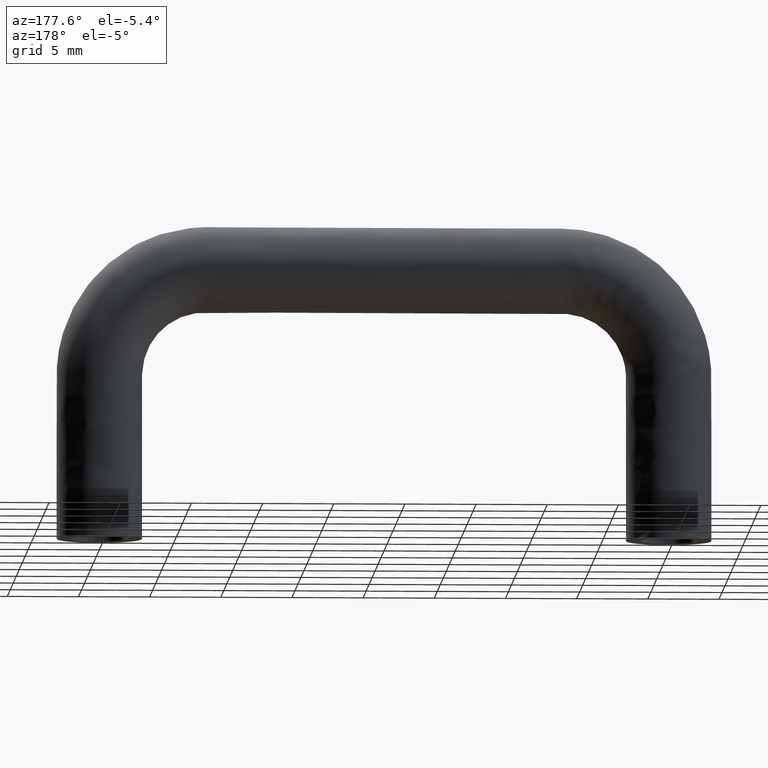
[diagram: clean part render]
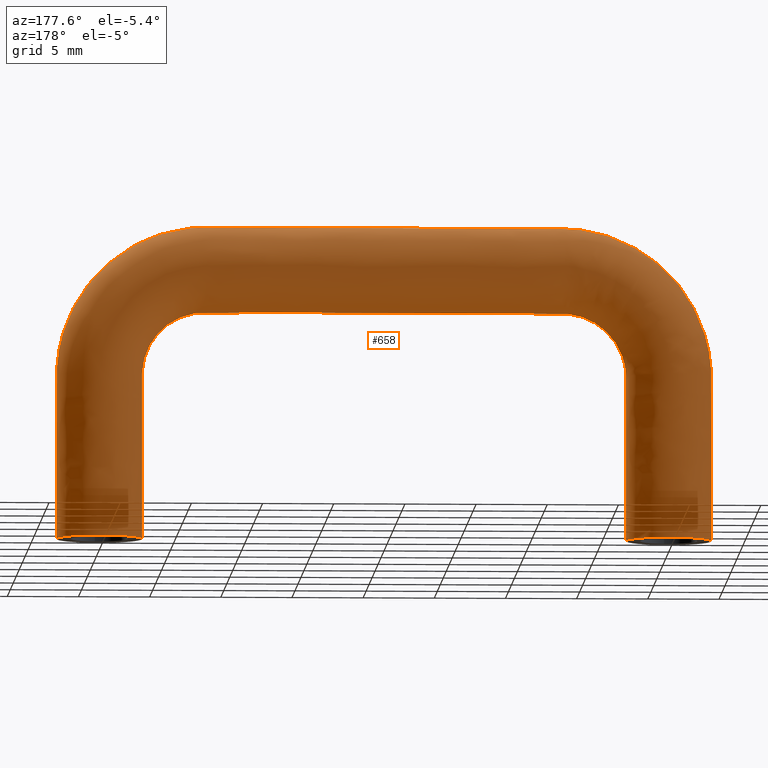
[diagram: same view with one face highlighted and labeled with its STEP entity id]
A machine part, auxiliary view. The second image highlights one B-rep face of the part: STEP entity #658.
In plain terms, the highlighted face is a freeform B-spline surface patch.
Its self-contained STEP definition (entity closure, byte-faithful):
#440=CARTESIAN_POINT('',(-3.000000000000002,-0.043189099899031,-0.381861436358178));
#441=CARTESIAN_POINT('',(-2.999999999999999,-0.021151251618007,-0.381861436358177));
#442=CARTESIAN_POINT('',(-3.000000000000001,3.000000000000001,-0.381861436358177));
#443=CARTESIAN_POINT('',(1.836704E-016,3.0,-0.381861436358178));
#444=CARTESIAN_POINT('',(3.000000000000001,3.000000000000001,-0.381861436358177));
#445=CARTESIAN_POINT('',(3.000000000000000,-0.021151252378914,-0.381861436358178));
#446=CARTESIAN_POINT('',(2.999999999999999,-0.042179325162122,-0.381861436358177));
#447=CARTESIAN_POINT('',(-3.000000000000003,-0.043189099899031,3.584546247387517));
#448=CARTESIAN_POINT('',(-2.999999999999999,-0.021151251618007,3.584546247387514));
#449=CARTESIAN_POINT('',(-3.000000000000001,3.000000000000001,3.584546247387515));
#450=CARTESIAN_POINT('',(1.930558E-016,3.0,3.584546247387515));
#451=CARTESIAN_POINT('',(3.000000000000001,3.000000000000001,3.584546247387516));
#452=CARTESIAN_POINT('',(3.000000000000000,-0.021151252378914,3.584546247387516));
#453=CARTESIAN_POINT('',(2.999999999999999,-0.042179325162122,3.584546247387514));
#454=CARTESIAN_POINT('',(-3.000000000000003,-0.043189099899031,7.542273123693765));
#455=CARTESIAN_POINT('',(-2.999999999999999,-0.021151251618007,7.542273123693756));
#456=CARTESIAN_POINT('',(-3.000000000000003,3.000000000000001,7.542273123693760));
#457=CARTESIAN_POINT('',(-1.052025E-016,3.0,7.542273123693759));
#458=CARTESIAN_POINT('',(3.000000000000001,3.000000000000001,7.542273123693745));
#459=CARTESIAN_POINT('',(3.000000000000000,-0.021151252378914,7.542273123693750));
#460=CARTESIAN_POINT('',(2.999999999999999,-0.042179325162122,7.542273123693747));
#461=CARTESIAN_POINT('',(-3.000000000000003,-0.043189099899031,11.500000000000005));
#462=CARTESIAN_POINT('',(-2.999999999999999,-0.021151251618007,11.500000000000000));
#463=CARTESIAN_POINT('',(-2.999999999999987,3.000000000000001,11.499999999999995));
#464=CARTESIAN_POINT('',(9.086292E-015,3.0,11.500000000000000));
#465=CARTESIAN_POINT('',(3.000000000000008,3.000000000000001,11.499999999999982));
#466=CARTESIAN_POINT('',(3.000000000000000,-0.021151252378914,11.499999999999998));
#467=CARTESIAN_POINT('',(2.999999999999999,-0.042179325162122,11.499999999999996));
#468=CARTESIAN_POINT('',(-3.000000000000003,-0.043189099899031,14.283620580298569));
#469=CARTESIAN_POINT('',(-3.0,-0.021151251618007,14.283620580298557));
#470=CARTESIAN_POINT('',(-2.999999999999980,3.000000000000001,14.283620580298548));
#471=CARTESIAN_POINT('',(1.743353E-014,3.0,13.489123673796581));
#472=CARTESIAN_POINT('',(3.000000000000014,3.000000000000001,12.694626767294574));
#473=CARTESIAN_POINT('',(3.000000000000000,-0.021151252378914,12.694626767294581));
#474=CARTESIAN_POINT('',(2.999999999999999,-0.042179325162122,12.694626767294571));
#475=CARTESIAN_POINT('',(-1.892938191038292,-0.043189099899031,16.956304213879204));
#476=CARTESIAN_POINT('',(-1.892938191038290,-0.021151251618007,16.956304213879193));
#477=CARTESIAN_POINT('',(-1.892938191038287,3.000000000000001,16.956304213879182));
#478=CARTESIAN_POINT('',(0.790176302740649,3.0,15.396778020538850));
#479=CARTESIAN_POINT('',(3.473290796519585,3.000000000000001,13.837251827198479));
#480=CARTESIAN_POINT('',(3.473290796519586,-0.021151252378914,13.837251827198505));
#481=CARTESIAN_POINT('',(3.473290796519583,-0.042179325162122,13.837251827198486));
#482=CARTESIAN_POINT('',(2.043695786120817,-0.043189099899031,20.892938191038308));
#483=CARTESIAN_POINT('',(2.043695786120815,-0.021151251618007,20.892938191038294));
#484=CARTESIAN_POINT('',(2.043695786120813,3.000000000000001,20.892938191038269));
#485=CARTESIAN_POINT('',(3.603221979461160,3.0,18.209823697259349));
#486=CARTESIAN_POINT('',(5.162748172801506,3.000000000000001,15.526709203480419));
#487=CARTESIAN_POINT('',(5.162748172801511,-0.021151252378914,15.526709203480406));
#488=CARTESIAN_POINT('',(5.162748172801508,-0.042179325162122,15.526709203480388));
#489=CARTESIAN_POINT('',(4.716379419701431,-0.043189099899031,22.000000000000014));
#490=CARTESIAN_POINT('',(4.716379419701428,-0.021151251618007,21.999999999999993));
#491=CARTESIAN_POINT('',(4.716379419701426,3.000000000000001,21.999999999999993));
#492=CARTESIAN_POINT('',(5.510876326203430,3.0,19.0));
#493=CARTESIAN_POINT('',(6.305373232705416,3.000000000000001,15.999999999999959));
#494=CARTESIAN_POINT('',(6.305373232705422,-0.021151252378914,16.000000000000007));
#495=CARTESIAN_POINT('',(6.305373232705418,-0.042179325162122,15.999999999999989));
#496=CARTESIAN_POINT('',(7.500000000000005,-0.043189099899031,22.000000000000014));
#497=CARTESIAN_POINT('',(7.499999999999997,-0.021151251618007,21.999999999999993));
#498=CARTESIAN_POINT('',(7.499999999999999,3.000000000000001,21.999999999999993));
#499=CARTESIAN_POINT('',(7.500000000000000,3.0,19.0));
#500=CARTESIAN_POINT('',(7.499999999999999,3.000000000000001,15.999999999999959));
#501=CARTESIAN_POINT('',(7.500000000000002,-0.021151252378914,16.000000000000007));
#502=CARTESIAN_POINT('',(7.499999999999996,-0.042179325162122,15.999999999999989));
#503=CARTESIAN_POINT('',(15.833333333333362,-0.043189099899031,22.000000000000014));
#504=CARTESIAN_POINT('',(15.833333333333353,-0.021151251618007,21.999999999999993));
#505=CARTESIAN_POINT('',(15.833333333333318,3.000000000000001,21.999999999999993));
#506=CARTESIAN_POINT('',(15.833333333333350,3.0,19.0));
#507=CARTESIAN_POINT('',(15.833333333333318,3.000000000000001,15.999999999999959));
#508=CARTESIAN_POINT('',(15.833333333333355,-0.021151252378914,16.000000000000007));
#509=CARTESIAN_POINT('',(15.833333333333345,-0.042179325162122,15.999999999999989));
#510=CARTESIAN_POINT('',(24.166666666666668,-0.043189099899031,22.000000000000014));
#511=CARTESIAN_POINT('',(24.166666666666643,-0.021151251618007,21.999999999999993));
#512=CARTESIAN_POINT('',(24.166666666666650,3.000000000000001,21.999999999999993));
#513=CARTESIAN_POINT('',(24.166666666666650,3.0,19.0));
#514=CARTESIAN_POINT('',(24.166666666666650,3.000000000000001,15.999999999999959));
#515=CARTESIAN_POINT('',(24.166666666666664,-0.021151252378914,16.000000000000007));
#516=CARTESIAN_POINT('',(24.166666666666639,-0.042179325162122,15.999999999999989));
#517=CARTESIAN_POINT('',(32.500000000000028,-0.043189099899031,22.000000000000014));
#518=CARTESIAN_POINT('',(32.500000000000000,-0.021151251618007,21.999999999999993));
#519=CARTESIAN_POINT('',(32.499999999999986,3.000000000000001,21.999999999999993));
#520=CARTESIAN_POINT('',(32.500000000000000,3.0,19.0));
#521=CARTESIAN_POINT('',(32.499999999999986,3.000000000000001,15.999999999999959));
#522=CARTESIAN_POINT('',(32.500000000000007,-0.021151252378914,16.000000000000007));
#523=CARTESIAN_POINT('',(32.499999999999986,-0.042179325162122,15.999999999999989));
#524=CARTESIAN_POINT('',(38.263455967290561,-0.043189099899031,22.000000000000014));
#525=CARTESIAN_POINT('',(38.263455967290533,-0.021151251618007,21.999999999999993));
#526=CARTESIAN_POINT('',(38.263455967290575,3.000000000000001,21.999999999999993));
#527=CARTESIAN_POINT('',(36.642135623730951,3.0,19.0));
#528=CARTESIAN_POINT('',(35.020815280171291,3.000000000000001,15.999999999999959));
#529=CARTESIAN_POINT('',(35.020815280171306,-0.021151252378914,16.000000000000007));
#530=CARTESIAN_POINT('',(35.020815280171277,-0.042179325162122,15.999999999999989));
#531=CARTESIAN_POINT('',(43.000000000000036,-0.043189099899031,17.263455967290607));
#532=CARTESIAN_POINT('',(42.999999999999979,-0.021151251618007,17.263455967290600));
#533=CARTESIAN_POINT('',(42.999999999999908,3.000000000000001,17.263455967290572));
#534=CARTESIAN_POINT('',(40.0,3.0,15.642135623730949));
#535=CARTESIAN_POINT('',(36.999999999999964,3.000000000000001,14.020815280171290));
#536=CARTESIAN_POINT('',(37.000000000000007,-0.021151252378914,14.020815280171306));
#537=CARTESIAN_POINT('',(36.999999999999979,-0.042179325162122,14.020815280171297));
#538=CARTESIAN_POINT('',(43.000000000000028,-0.043189099899031,11.500000000000005));
#539=CARTESIAN_POINT('',(42.999999999999979,-0.021151251618007,11.500000000000000));
#540=CARTESIAN_POINT('',(42.999999999999979,3.000000000000001,11.499999999999995));
#541=CARTESIAN_POINT('',(40.0,3.0,11.500000000000000));
#542=CARTESIAN_POINT('',(36.999999999999964,3.000000000000001,11.499999999999982));
#543=CARTESIAN_POINT('',(37.000000000000007,-0.021151252378914,11.499999999999998));
#544=CARTESIAN_POINT('',(36.999999999999979,-0.042179325162122,11.499999999999996));
#545=CARTESIAN_POINT('',(43.000000000000028,-0.043189099899031,6.517807831197576));
#546=CARTESIAN_POINT('',(42.999999999999972,-0.021151251618007,6.517807831197567));
#547=CARTESIAN_POINT('',(42.999999999999993,3.0,6.517807831197559));
#548=CARTESIAN_POINT('',(40.0,3.0,6.517807831197557));
#549=CARTESIAN_POINT('',(36.999999999999979,3.0,6.517807831197543));
#550=CARTESIAN_POINT('',(37.000000000000014,-0.021151252378914,6.517807831197547));
#551=CARTESIAN_POINT('',(36.999999999999993,-0.042179325162122,6.517807831197541));
#552=CARTESIAN_POINT('',(43.000000000000028,-0.043189099899031,1.535615662395124));
#553=CARTESIAN_POINT('',(42.999999999999972,-0.021151251618007,1.535615662395121));
#554=CARTESIAN_POINT('',(42.999999999999964,3.000000000000003,1.535615662395124));
#555=CARTESIAN_POINT('',(40.0,3.0,1.535615662395106));
#556=CARTESIAN_POINT('',(36.999999999999964,3.000000000000003,1.535615662395091));
#557=CARTESIAN_POINT('',(37.000000000000014,-0.021151252378914,1.535615662395089));
#558=CARTESIAN_POINT('',(36.999999999999979,-0.042179325162122,1.535615662395088));
#559=CARTESIAN_POINT('',(43.000000000000014,-0.043189099899031,-3.446576506407328));
#560=CARTESIAN_POINT('',(42.999999999999986,-0.021151251618007,-3.446576506407324));
#561=CARTESIAN_POINT('',(42.999999999999993,3.000000000000003,-3.446576506407321));
#562=CARTESIAN_POINT('',(40.0,3.0,-3.446576506407344));
#563=CARTESIAN_POINT('',(36.999999999999979,3.000000000000003,-3.446576506407361));
#564=CARTESIAN_POINT('',(37.0,-0.021151252378914,-3.446576506407365));
#565=CARTESIAN_POINT('',(36.999999999999979,-0.042179325162122,-3.446576506407362));
#573=(BOUNDED_SURFACE()B_SPLINE_SURFACE(2,3,((#440,#447,#454,#461,#468,#475,#482,#489,#496,#503,#510,#517,#524,#531,#538,#545,#552,#559),(#441,#448,#455,#462,#469,#476,#483,#490,#497,#504,#511,#518,#525,#532,#539,#546,#553,#560),(#442,#449,#456,#463,#470,#477,#484,#491,#498,#505,#512,#519,#526,#533,#540,#547,#554,#561),(#443,#450,#457,#464,#471,#478,#485,#492,#499,#506,#513,#520,#527,#534,#541,#548,#555,#562),(#444,#451,#458,#465,#472,#479,#486,#493,#500,#507,#514,#521,#528,#535,#542,#549,#556,#563),(#445,#452,#459,#466,#473,#480,#487,#494,#501,#508,#515,#522,#529,#536,#543,#550,#557,#564),(#446,#453,#460,#467,#474,#481,#488,#495,#502,#509,#516,#523,#530,#537,#544,#551,#558,#565)),.UNSPECIFIED.,.F.,.F.,.U.)B_SPLINE_SURFACE_WITH_KNOTS((3,1,2,1,3),(4,3,2,3,3,3,4),(0.0,0.050902551656207,5.021465300133356,9.992028048610504,10.041733674984259),(0.0,25.830133557319709,50.830133557319769,75.830133557319826,100.830133557319900,125.830133557320000,158.322691179944710),.UNSPECIFIED.)GEOMETRIC_REPRESENTATION_ITEM()RATIONAL_B_SPLINE_SURFACE(((1.005857864033983,1.005857864033983,1.005857864033983,1.005857864033983,1.005857864033983,1.005857864033983,1.005857864033983,1.005857864033983,1.005857864033983,1.005857864033983,1.005857864033983,1.005857864033983,1.005857864033983,1.005857864033983,1.005857864033983,1.005857864033983,1.005857864033983,1.005857864033983),(1.002928932016992,1.002928932016992,1.002928932016992,1.002928932016992,1.002928932016992,1.002928932016992,1.002928932016992,1.002928932016992,1.002928932016992,1.002928932016992,1.002928932016992,1.002928932016992,1.002928932016992,1.002928932016992,1.002928932016992,1.002928932016992,1.002928932016992,1.002928932016992),(0.707106781186548,0.707106781186548,0.707106781186548,0.707106781186548,0.707106781186548,0.707106781186548,0.707106781186548,0.707106781186548,0.707106781186548,0.707106781186548,0.707106781186548,0.707106781186548,0.707106781186548,0.707106781186548,0.707106781186548,0.707106781186548,0.707106781186548,0.707106781186548),(1.0,1.0,1.0,1.0,1.0,1.0,1.0,1.0,1.0,1.0,1.0,1.0,1.0,1.0,1.0,1.0,1.0,1.0),(0.707106781186548,0.707106781186548,0.707106781186548,0.707106781186548,0.707106781186548,0.707106781186548,0.707106781186548,0.707106781186548,0.707106781186548,0.707106781186548,0.707106781186548,0.707106781186548,0.707106781186548,0.707106781186548,0.707106781186548,0.707106781186548,0.707106781186548,0.707106781186548),(1.002928932122667,1.002928932122667,1.002928932122667,1.002928932122667,1.002928932122667,1.002928932122667,1.002928932122667,1.002928932122667,1.002928932122667,1.002928932122667,1.002928932122667,1.002928932122667,1.002928932122667,1.002928932122667,1.002928932122667,1.002928932122667,1.002928932122667,1.002928932122667),(1.005857864245335,1.005857864245335,1.005857864245335,1.005857864245335,1.005857864245335,1.005857864245335,1.005857864245335,1.005857864245335,1.005857864245335,1.005857864245335,1.005857864245335,1.005857864245335,1.005857864245335,1.005857864245335,1.005857864245335,1.005857864245335,1.005857864245335,1.005857864245335)))REPRESENTATION_ITEM('')SURFACE());
#574=CARTESIAN_POINT('',(-3.0,3.673819E-016,0.0));
#575=VERTEX_POINT('',#574);
#576=CARTESIAN_POINT('',(3.0,-3.673819E-016,0.0));
#577=VERTEX_POINT('',#576);
#578=CARTESIAN_POINT('',(-3.0,4.005314E-016,0.0));
#579=CARTESIAN_POINT('',(-3.0,3.0,0.0));
#580=CARTESIAN_POINT('',(9.184548E-017,3.0,0.0));
#581=CARTESIAN_POINT('',(3.0,3.0,0.0));
#582=CARTESIAN_POINT('',(3.0,4.005314E-016,0.0));
#590=(BOUNDED_CURVE()B_SPLINE_CURVE(2,(#578,#579,#580,#581,#582),.UNSPECIFIED.,.F.,.U.)B_SPLINE_CURVE_WITH_KNOTS((3,2,3),(0.0,0.500000000000000,1.0),.UNSPECIFIED.)CURVE()GEOMETRIC_REPRESENTATION_ITEM()RATIONAL_B_SPLINE_CURVE((1.0,0.707106781186548,1.0,0.707106781186548,1.0))REPRESENTATION_ITEM(''));
#591=EDGE_CURVE('',#575,#577,#590,.T.);
#592=ORIENTED_EDGE('',*,*,#591,.F.);
#593=CARTESIAN_POINT('',(43.0,3.673819E-016,1.681514E-014));
#594=VERTEX_POINT('',#593);
#595=CARTESIAN_POINT('',(-3.0,3.673819E-016,0.0));
#596=CARTESIAN_POINT('',(-3.0,3.673819E-016,3.833333333333335));
#597=CARTESIAN_POINT('',(-3.0,3.673819E-016,7.666666666666670));
#598=CARTESIAN_POINT('',(-3.0,3.673819E-016,11.500000000000000));
#599=CARTESIAN_POINT('',(-3.0,3.673819E-016,14.283620580298560));
#600=CARTESIAN_POINT('',(-1.892938191038290,3.673819E-016,16.956304213879200));
#601=CARTESIAN_POINT('',(0.075378797541262,3.673819E-016,18.924621202458749));
#602=CARTESIAN_POINT('',(2.043695786120815,3.673819E-016,20.892938191038301));
#603=CARTESIAN_POINT('',(4.716379419701430,3.673819E-016,22.0));
#604=CARTESIAN_POINT('',(7.500000000000000,3.673819E-016,22.0));
#605=CARTESIAN_POINT('',(15.833333333333350,3.673819E-016,22.0));
#606=CARTESIAN_POINT('',(24.166666666666650,3.673819E-016,22.0));
#607=CARTESIAN_POINT('',(32.500000000000000,3.673819E-016,22.0));
#608=CARTESIAN_POINT('',(38.263455967290547,3.673819E-016,22.0));
#609=CARTESIAN_POINT('',(43.0,3.673819E-016,17.263455967290600));
#610=CARTESIAN_POINT('',(43.0,3.673819E-016,11.500000000000000));
#611=CARTESIAN_POINT('',(43.0,3.673819E-016,7.666666666666680));
#612=CARTESIAN_POINT('',(43.0,3.673819E-016,3.833333333333350));
#613=CARTESIAN_POINT('',(43.0,3.673819E-016,1.681514E-014));
#614=B_SPLINE_CURVE_WITH_KNOTS('',3,(#595,#596,#597,#598,#599,#600,#601,#602,#603,#604,#605,#606,#607,#608,#609,#610,#611,#612,#613),.UNSPECIFIED.,.F.,.U.,(4,3,3,3,3,3,4),(0.0,1.0,2.0,3.0,4.0,5.0,6.0),.UNSPECIFIED.);
#615=EDGE_CURVE('',#575,#594,#614,.T.);
#616=ORIENTED_EDGE('',*,*,#615,.T.);
#617=CARTESIAN_POINT('',(37.0,-3.673819E-016,-1.681514E-014));
#618=VERTEX_POINT('',#617);
#619=CARTESIAN_POINT('',(43.0,4.005314E-016,-1.076612E-028));
#620=CARTESIAN_POINT('',(42.999999999999993,3.0,-1.076612E-028));
#621=CARTESIAN_POINT('',(40.0,3.0,-1.076612E-028));
#622=CARTESIAN_POINT('',(37.0,3.0,-1.076612E-028));
#623=CARTESIAN_POINT('',(37.0,4.005314E-016,-1.076612E-028));
#631=(BOUNDED_CURVE()B_SPLINE_CURVE(2,(#619,#620,#621,#622,#623),.UNSPECIFIED.,.F.,.U.)B_SPLINE_CURVE_WITH_KNOTS((3,2,3),(0.0,0.500000000000000,1.0),.UNSPECIFIED.)CURVE()GEOMETRIC_REPRESENTATION_ITEM()RATIONAL_B_SPLINE_CURVE((1.0,0.707106781186548,1.0,0.707106781186548,1.0))REPRESENTATION_ITEM(''));
#632=EDGE_CURVE('',#594,#618,#631,.T.);
#633=ORIENTED_EDGE('',*,*,#632,.T.);
#634=CARTESIAN_POINT('',(3.0,-7.347638E-016,0.0));
#635=CARTESIAN_POINT('',(3.0,-7.347638E-016,3.833333333333335));
#636=CARTESIAN_POINT('',(3.0,-7.347638E-016,7.666666666666660));
#637=CARTESIAN_POINT('',(3.0,-7.347638E-016,11.500000000000000));
#638=CARTESIAN_POINT('',(3.0,-7.347638E-016,12.694626767294579));
#639=CARTESIAN_POINT('',(3.473290796519585,-7.347638E-016,13.837251827198500));
#640=CARTESIAN_POINT('',(4.318019484660550,-7.347638E-016,14.681980515339440));
#641=CARTESIAN_POINT('',(5.162748172801510,-7.347638E-016,15.526709203480401));
#642=CARTESIAN_POINT('',(6.305373232705421,-7.347638E-016,16.0));
#643=CARTESIAN_POINT('',(7.500000000000000,-7.347638E-016,16.0));
#644=CARTESIAN_POINT('',(15.833333333333350,-7.347638E-016,16.0));
#645=CARTESIAN_POINT('',(24.166666666666650,-7.347638E-016,16.0));
#646=CARTESIAN_POINT('',(32.500000000000000,-7.347638E-016,16.0));
#647=CARTESIAN_POINT('',(35.020815280171298,-7.347638E-016,16.0));
#648=CARTESIAN_POINT('',(37.0,-7.347638E-016,14.020815280171300));
#649=CARTESIAN_POINT('',(37.0,-7.347638E-016,11.500000000000000));
#650=CARTESIAN_POINT('',(37.0,-7.347638E-016,7.666666666666660));
#651=CARTESIAN_POINT('',(37.0,-7.347638E-016,3.833333333333320));
#652=CARTESIAN_POINT('',(37.0,-7.347638E-016,-1.681514E-014));
#653=B_SPLINE_CURVE_WITH_KNOTS('',3,(#634,#635,#636,#637,#638,#639,#640,#641,#642,#643,#644,#645,#646,#647,#648,#649,#650,#651,#652),.UNSPECIFIED.,.F.,.U.,(4,3,3,3,3,3,4),(0.0,1.0,2.0,3.0,4.0,5.0,6.0),.UNSPECIFIED.);
#654=EDGE_CURVE('',#577,#618,#653,.T.);
#655=ORIENTED_EDGE('',*,*,#654,.F.);
#656=EDGE_LOOP('',(#592,#616,#633,#655));
#657=FACE_OUTER_BOUND('',#656,.T.);
#658=ADVANCED_FACE('',(#657),#573,.F.);